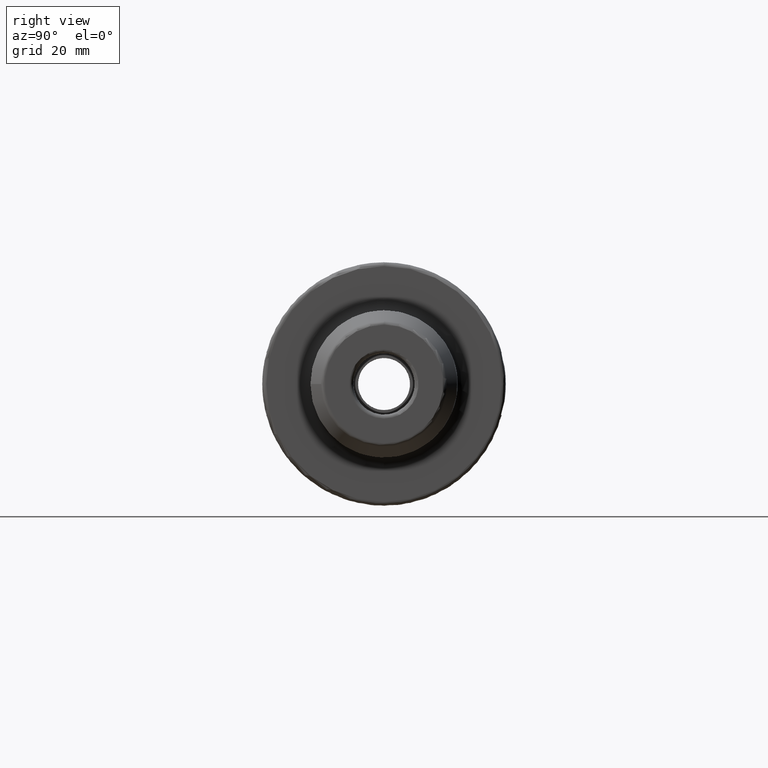
[diagram: clean part render]
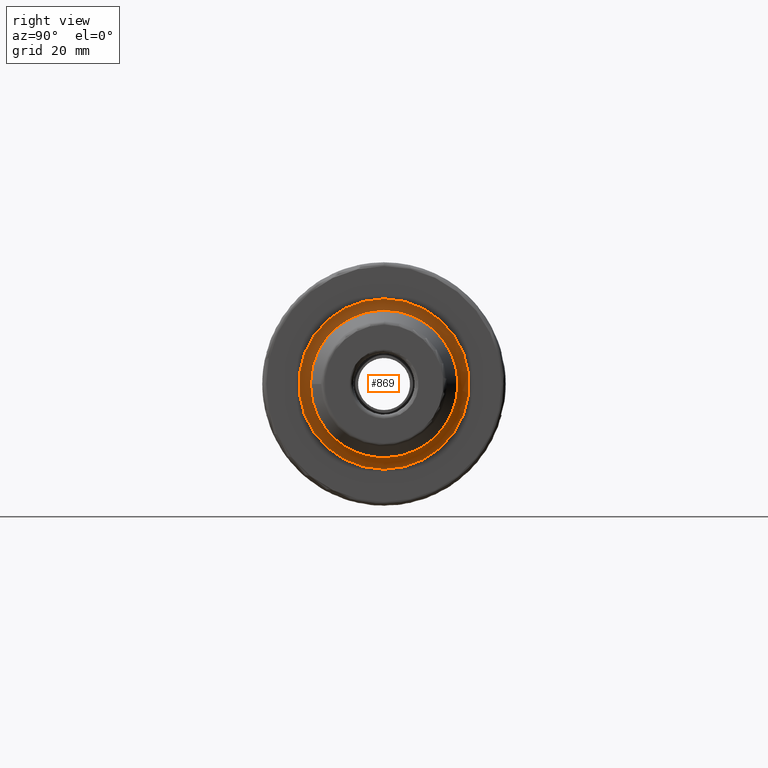
[diagram: same view with one face highlighted and labeled with its STEP entity id]
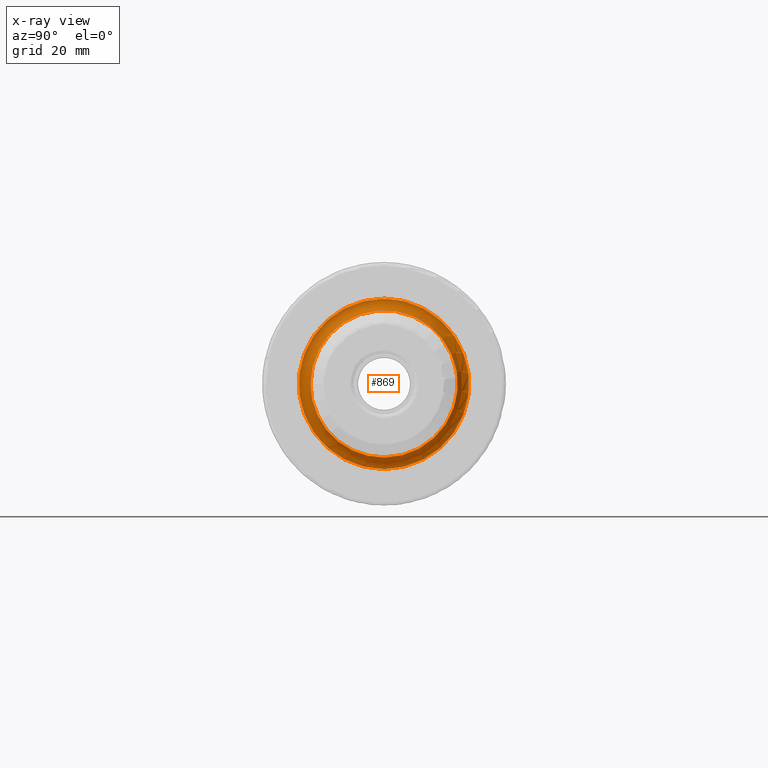
[diagram: x-ray of the same camera — body ghosted, the highlighted face saturated]
A machine part, right view. The second image highlights one B-rep face of the part: STEP entity #869.
The next image is the same camera in x-ray: the body ghosted, the highlighted face saturated — about 2% of this face is hidden behind the body in this view.
In plain terms, the highlighted toroidal blend (fillet) surface has major radius 22.05 mm and minor (blend) radius 3 mm.
Its self-contained STEP definition (entity closure, byte-faithful):
#189=FACE_OUTER_BOUND('',#245,.T.);
#245=EDGE_LOOP('',(#623,#624,#625,#626,#627));
#311=CIRCLE('',#959,19.05);
#312=CIRCLE('',#960,19.05);
#313=CIRCLE('',#962,3.);
#314=CIRCLE('',#963,22.05);
#375=VERTEX_POINT('',#1413);
#376=VERTEX_POINT('',#1415);
#379=VERTEX_POINT('',#1458);
#469=EDGE_CURVE('',#376,#375,#311,.T.);
#470=EDGE_CURVE('',#375,#376,#312,.T.);
#473=EDGE_CURVE('',#376,#379,#313,.T.);
#474=EDGE_CURVE('',#379,#379,#314,.T.);
#623=ORIENTED_EDGE('',*,*,#470,.T.);
#624=ORIENTED_EDGE('',*,*,#473,.T.);
#625=ORIENTED_EDGE('',*,*,#474,.T.);
#626=ORIENTED_EDGE('',*,*,#473,.F.);
#627=ORIENTED_EDGE('',*,*,#469,.T.);
#855=TOROIDAL_SURFACE('',#961,22.05,3.);
#869=ADVANCED_FACE('',(#189),#855,.F.);
#959=AXIS2_PLACEMENT_3D('',#1416,#1103,#1104);
#960=AXIS2_PLACEMENT_3D('',#1417,#1105,#1106);
#961=AXIS2_PLACEMENT_3D('',#1457,#1107,#1108);
#962=AXIS2_PLACEMENT_3D('',#1459,#1109,#1110);
#963=AXIS2_PLACEMENT_3D('',#1460,#1111,#1112);
#1103=DIRECTION('center_axis',(-1.,0.,0.));
#1104=DIRECTION('ref_axis',(0.,-1.,-1.22464679914735E-16));
#1105=DIRECTION('center_axis',(-1.,0.,0.));
#1106=DIRECTION('ref_axis',(0.,-1.,-1.22464679914735E-16));
#1107=DIRECTION('center_axis',(-1.,0.,0.));
#1108=DIRECTION('ref_axis',(0.,0.,1.));
#1109=DIRECTION('center_axis',(0.,-1.,1.22464679914735E-16));
#1110=DIRECTION('ref_axis',(0.,-1.22464679914735E-16,-1.));
#1111=DIRECTION('center_axis',(1.,0.,0.));
#1112=DIRECTION('ref_axis',(0.,-1.,-1.22464679914735E-16));
#1413=CARTESIAN_POINT('',(30.,-19.05,-2.33295215237571E-15));
#1415=CARTESIAN_POINT('',(30.,-2.33295215237571E-15,-19.05));
#1416=CARTESIAN_POINT('Origin',(30.,0.,0.));
#1417=CARTESIAN_POINT('Origin',(30.,0.,0.));
#1457=CARTESIAN_POINT('Origin',(30.,0.,0.));
#1458=CARTESIAN_POINT('',(27.,-2.70034619211992E-15,-22.05));
#1459=CARTESIAN_POINT('Origin',(30.,-2.70034619211992E-15,-22.05));
#1460=CARTESIAN_POINT('Origin',(27.,0.,0.));